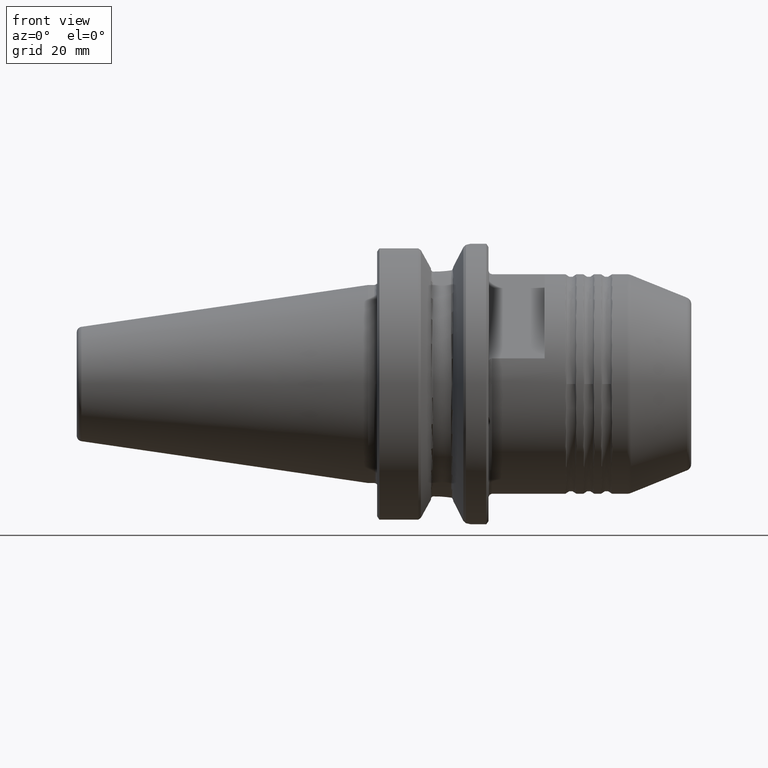
[diagram: clean part render]
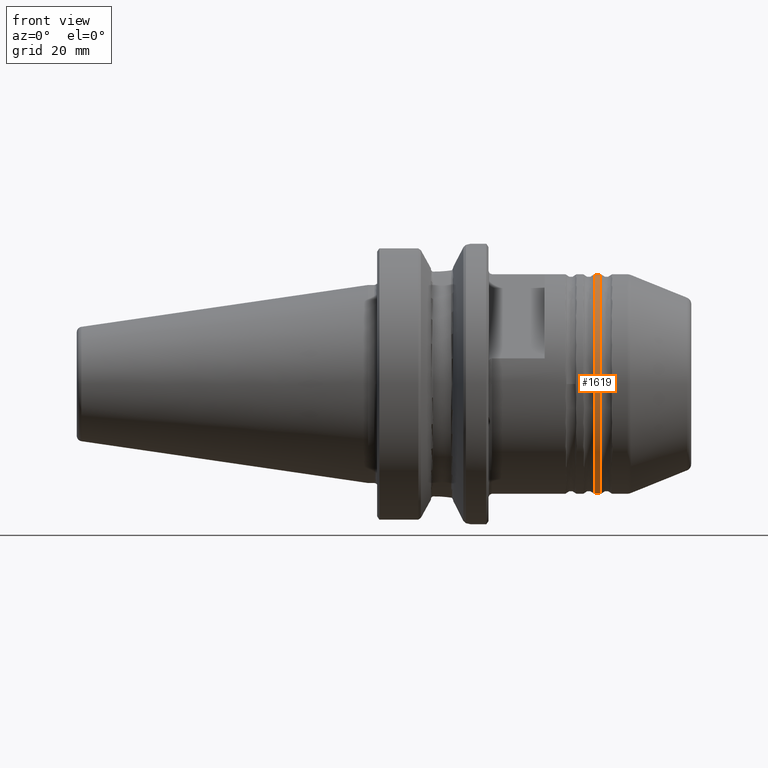
[diagram: same view with one face highlighted and labeled with its STEP entity id]
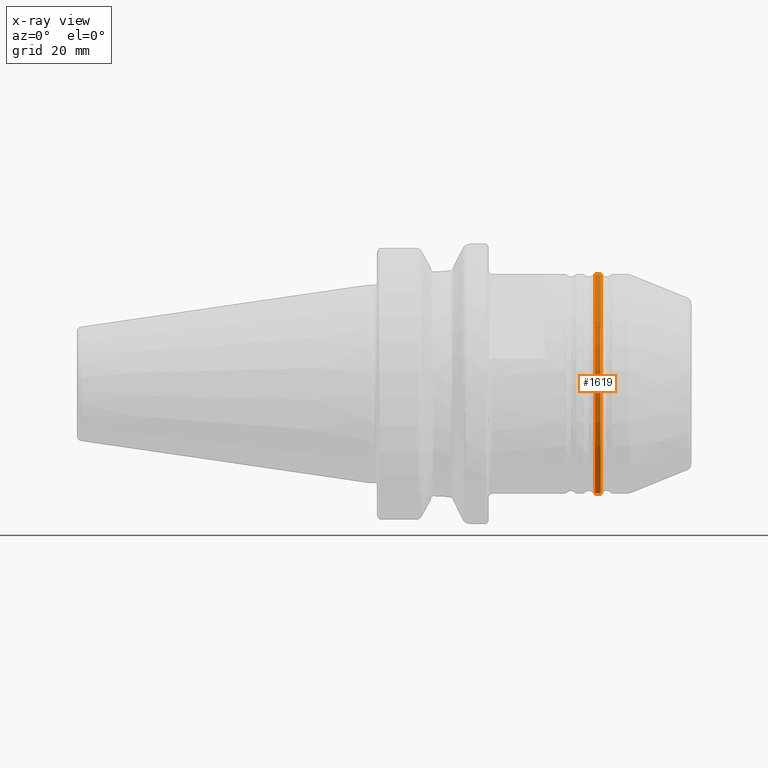
[diagram: x-ray of the same camera — body ghosted, the highlighted face saturated]
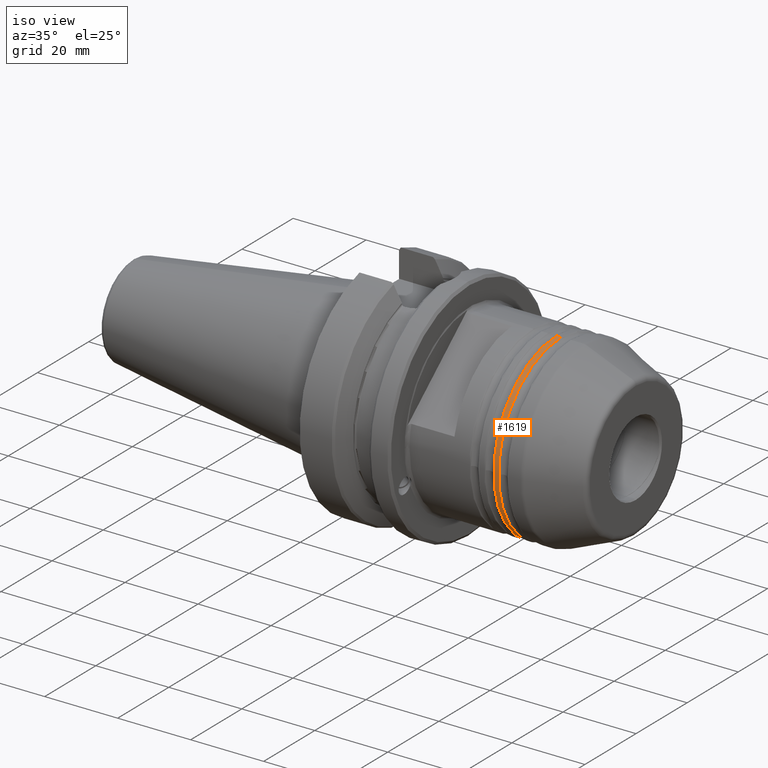
[diagram: same view with one face highlighted and labeled with its STEP entity id]
A machine part, front view. The second image highlights one B-rep face of the part: STEP entity #1619.
The next image is the same camera in x-ray: the body ghosted, the highlighted face saturated — about 0% of this face is hidden behind the body in this view.
A second angle (iso view) of the same face is appended — the face is thin or edge-on in the first view.
In plain terms, the highlighted cylindrical surface (partial cylindrical patch) has radius 24.625 mm, axis along (-1, 0, 0).
Its self-contained STEP definition (entity closure, byte-faithful):
#66 = AXIS2_PLACEMENT_3D ( 'NONE', #7617, #5837, #7573 ) ;
#257 = EDGE_CURVE ( 'NONE', #7387, #548, #3827, .T. ) ;
#349 = FACE_OUTER_BOUND ( 'NONE', #2131, .T. ) ;
#442 = ORIENTED_EDGE ( 'NONE', *, *, #1628, .T. ) ;
#536 = DIRECTION ( 'NONE',  ( 0.0000000000000000000, 0.0000000000000000000, -1.000000000000000000 ) ) ;
#548 = VERTEX_POINT ( 'NONE', #1048 ) ;
#1048 = CARTESIAN_POINT ( 'NONE',  ( 117.5583592135001100, 0.0000000000000000000, 24.62500000000000000 ) ) ;
#1250 = DIRECTION ( 'NONE',  ( 1.000000000000000000, -0.0000000000000000000, -0.0000000000000000000 ) ) ;
#1254 = CARTESIAN_POINT ( 'NONE',  ( 116.2416407864999000, 0.0000000000000000000, 24.62500000000000000 ) ) ;
#1619 = ADVANCED_FACE ( 'NONE', ( #349 ), #1760, .T. ) ;
#1628 = EDGE_CURVE ( 'NONE', #3129, #3539, #4049, .T. ) ;
#1760 = CYLINDRICAL_SURFACE ( 'NONE', #66, 24.62500000000000000 ) ;
#1911 = AXIS2_PLACEMENT_3D ( 'NONE', #7425, #3912, #3290 ) ;
#2131 = EDGE_LOOP ( 'NONE', ( #4328, #5604, #6199, #442 ) ) ;
#2428 = VECTOR ( 'NONE', #6077, 1000.000000000000000 ) ;
#3129 = VERTEX_POINT ( 'NONE', #1254 ) ;
#3290 = DIRECTION ( 'NONE',  ( 0.0000000000000000000, 0.0000000000000000000, -1.000000000000000000 ) ) ;
#3539 = VERTEX_POINT ( 'NONE', #5580 ) ;
#3827 = CIRCLE ( 'NONE', #1911, 24.62500000000000000 ) ;
#3912 = DIRECTION ( 'NONE',  ( -1.000000000000000000, 0.0000000000000000000, 0.0000000000000000000 ) ) ;
#4046 = EDGE_CURVE ( 'NONE', #548, #3129, #7251, .T. ) ;
#4049 = CIRCLE ( 'NONE', #7593, 24.62500000000000000 ) ;
#4148 = CARTESIAN_POINT ( 'NONE',  ( 116.2416407864999000, 0.0000000000000000000, 0.0000000000000000000 ) ) ;
#4328 = ORIENTED_EDGE ( 'NONE', *, *, #4413, .F. ) ;
#4413 = EDGE_CURVE ( 'NONE', #7387, #3539, #4985, .T. ) ;
#4985 = LINE ( 'NONE', #6019, #2428 ) ;
#5217 = DIRECTION ( 'NONE',  ( -1.000000000000000000, 0.0000000000000000000, 0.0000000000000000000 ) ) ;
#5580 = CARTESIAN_POINT ( 'NONE',  ( 116.2416407864999000, 3.015692742900357400E-015, -24.62500000000000000 ) ) ;
#5604 = ORIENTED_EDGE ( 'NONE', *, *, #257, .T. ) ;
#5837 = DIRECTION ( 'NONE',  ( -1.000000000000000000, 0.0000000000000000000, 0.0000000000000000000 ) ) ;
#6019 = CARTESIAN_POINT ( 'NONE',  ( 140.1750000000000100, 3.015692742900357400E-015, -24.62500000000000000 ) ) ;
#6077 = DIRECTION ( 'NONE',  ( -1.000000000000000000, 0.0000000000000000000, 0.0000000000000000000 ) ) ;
#6199 = ORIENTED_EDGE ( 'NONE', *, *, #4046, .T. ) ;
#6399 = CARTESIAN_POINT ( 'NONE',  ( 140.1750000000000100, 0.0000000000000000000, 24.62500000000000000 ) ) ;
#6605 = VECTOR ( 'NONE', #5217, 1000.000000000000000 ) ;
#7140 = CARTESIAN_POINT ( 'NONE',  ( 117.5583592135001100, 3.015692742900357400E-015, -24.62500000000000000 ) ) ;
#7251 = LINE ( 'NONE', #6399, #6605 ) ;
#7387 = VERTEX_POINT ( 'NONE', #7140 ) ;
#7425 = CARTESIAN_POINT ( 'NONE',  ( 117.5583592135001100, 0.0000000000000000000, 0.0000000000000000000 ) ) ;
#7573 = DIRECTION ( 'NONE',  ( 0.0000000000000000000, 0.0000000000000000000, 1.000000000000000000 ) ) ;
#7593 = AXIS2_PLACEMENT_3D ( 'NONE', #4148, #1250, #536 ) ;
#7617 = CARTESIAN_POINT ( 'NONE',  ( 140.1750000000000100, 0.0000000000000000000, 0.0000000000000000000 ) ) ;